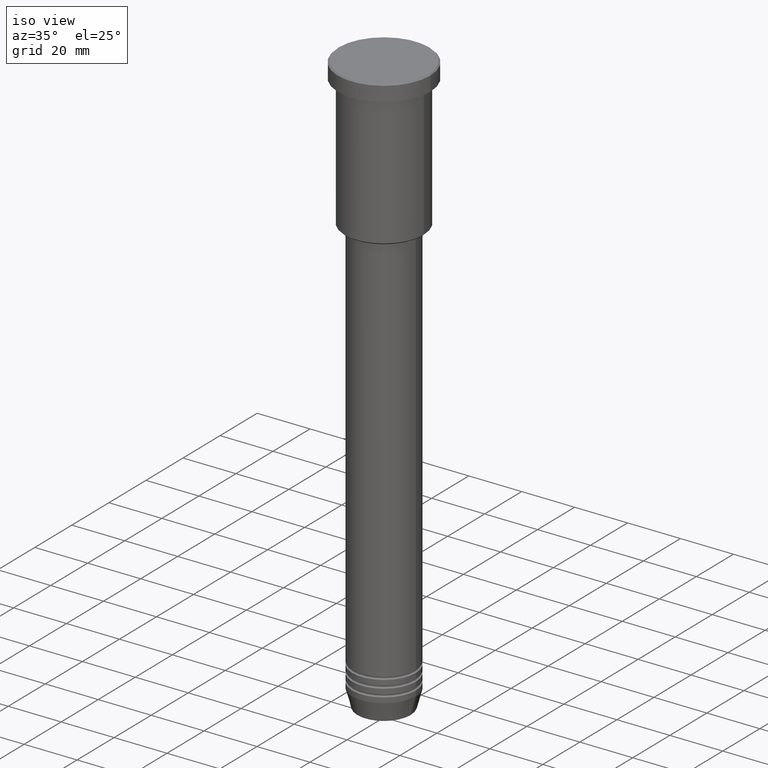
[diagram: clean part render]
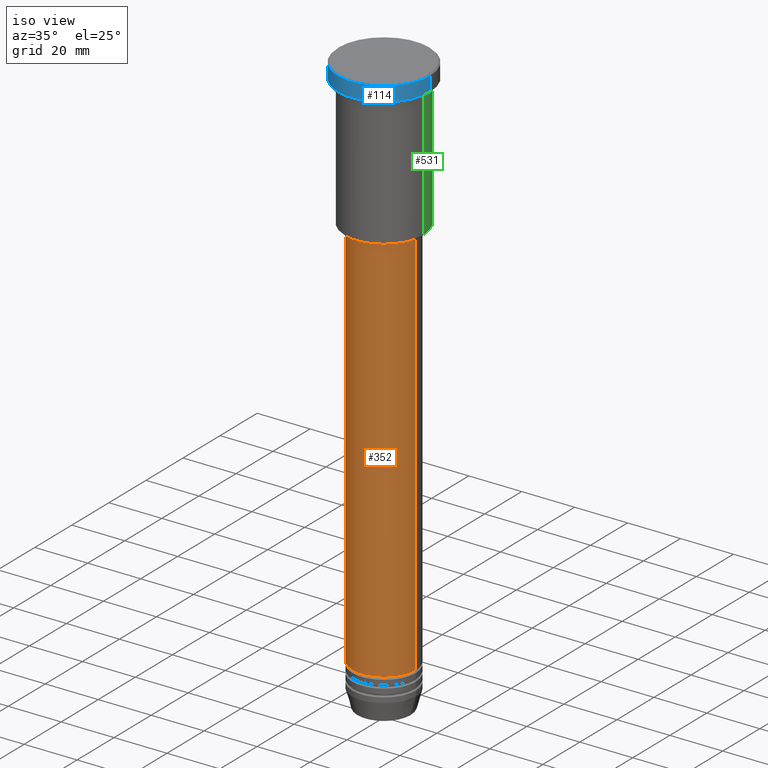
[diagram: same view with three faces highlighted in distinct colors, each labeled with its STEP entity id]
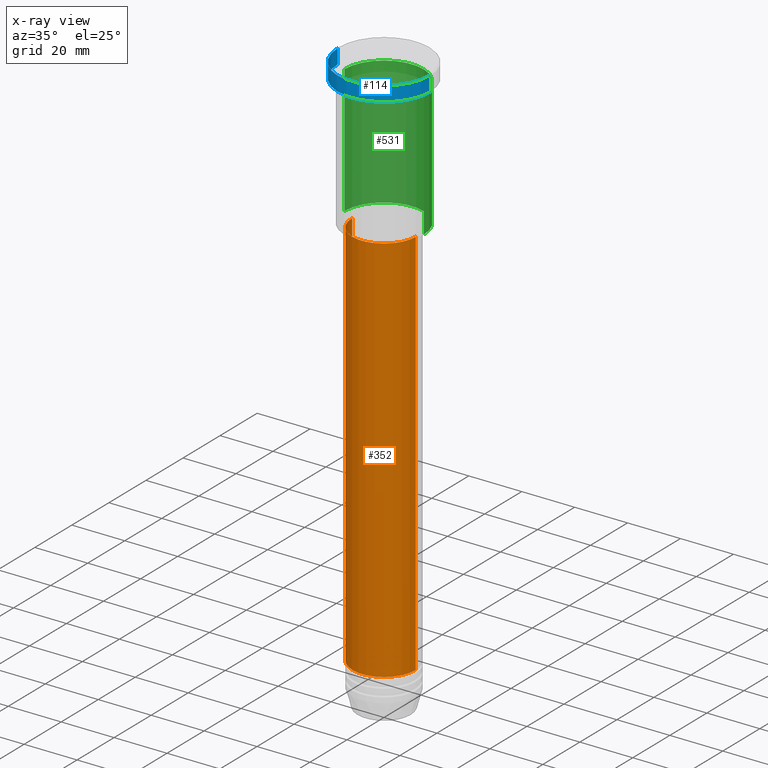
[diagram: x-ray of the same camera — body ghosted, the three highlighted faces saturated]
A machine part, iso view with three faces highlighted in distinct colors.
The next image is the same camera in x-ray (body ghosted, the three faces saturated) — at least one of them is partly hidden behind the body in this view.
Their STEP definitions:

[orange] entity #352 — the highlighted cylindrical surface (partial cylindrical patch) has radius 12 mm, axis along (-0, -0, 1).
#71 = VERTEX_POINT ( 'NONE', #251 ) ;
#85 = DIRECTION ( 'NONE',  ( -0.000000000000000000, -0.000000000000000000, 1.000000000000000000 ) ) ;
#90 = CARTESIAN_POINT ( 'NONE',  ( 0.000000000000000000, 0.000000000000000000, -57.00000000000000000 ) ) ;
#119 = VERTEX_POINT ( 'NONE', #235 ) ;
#205 = EDGE_CURVE ( 'NONE', #302, #664, #422, .T. ) ;
#218 = EDGE_CURVE ( 'NONE', #664, #71, #990, .T. ) ;
#234 = CIRCLE ( 'NONE', #1038, 12.00000000000000000 ) ;
#235 = CARTESIAN_POINT ( 'NONE',  ( -12.00000000000000000, 1.469576158976823947E-15, -57.00000000000000000 ) ) ;
#242 = ORIENTED_EDGE ( 'NONE', *, *, #218, .T. ) ;
#251 = CARTESIAN_POINT ( 'NONE',  ( 12.00000000000000000, 0.000000000000000000, -57.00000000000000000 ) ) ;
#265 = CARTESIAN_POINT ( 'NONE',  ( 0.000000000000000000, 0.000000000000000000, -205.0000000000000000 ) ) ;
#284 = DIRECTION ( 'NONE',  ( 1.000000000000000000, 0.000000000000000000, 0.000000000000000000 ) ) ;
#302 = VERTEX_POINT ( 'NONE', #1145 ) ;
#340 = AXIS2_PLACEMENT_3D ( 'NONE', #265, #1013, #1098 ) ;
#352 = ADVANCED_FACE ( 'NONE', ( #1042 ), #869, .T. ) ;
#406 = AXIS2_PLACEMENT_3D ( 'NONE', #1156, #971, #284 ) ;
#422 = CIRCLE ( 'NONE', #340, 12.00000000000000000 ) ;
#476 = ORIENTED_EDGE ( 'NONE', *, *, #205, .T. ) ;
#484 = EDGE_CURVE ( 'NONE', #119, #71, #234, .T. ) ;
#546 = VECTOR ( 'NONE', #85, 1000.000000000000000 ) ;
#661 = VECTOR ( 'NONE', #824, 1000.000000000000000 ) ;
#664 = VERTEX_POINT ( 'NONE', #752 ) ;
#715 = DIRECTION ( 'NONE',  ( 1.000000000000000000, 0.000000000000000000, 0.000000000000000000 ) ) ;
#752 = CARTESIAN_POINT ( 'NONE',  ( 12.00000000000000000, 0.000000000000000000, -205.0000000000000000 ) ) ;
#824 = DIRECTION ( 'NONE',  ( -0.000000000000000000, -0.000000000000000000, 1.000000000000000000 ) ) ;
#869 = CYLINDRICAL_SURFACE ( 'NONE', #406, 12.00000000000000000 ) ;
#878 = DIRECTION ( 'NONE',  ( -0.000000000000000000, -0.000000000000000000, 1.000000000000000000 ) ) ;
#893 = CARTESIAN_POINT ( 'NONE',  ( 12.00000000000000000, 0.000000000000000000, 0.000000000000000000 ) ) ;
#915 = LINE ( 'NONE', #997, #661 ) ;
#948 = EDGE_LOOP ( 'NONE', ( #1083, #476, #242, #1047 ) ) ;
#971 = DIRECTION ( 'NONE',  ( -0.000000000000000000, -0.000000000000000000, 1.000000000000000000 ) ) ;
#990 = LINE ( 'NONE', #893, #546 ) ;
#997 = CARTESIAN_POINT ( 'NONE',  ( -12.00000000000000000, 1.469576158976823947E-15, 0.000000000000000000 ) ) ;
#1013 = DIRECTION ( 'NONE',  ( -0.000000000000000000, -0.000000000000000000, 1.000000000000000000 ) ) ;
#1038 = AXIS2_PLACEMENT_3D ( 'NONE', #90, #878, #715 ) ;
#1042 = FACE_OUTER_BOUND ( 'NONE', #948, .T. ) ;
#1047 = ORIENTED_EDGE ( 'NONE', *, *, #484, .F. ) ;
#1083 = ORIENTED_EDGE ( 'NONE', *, *, #1105, .F. ) ;
#1098 = DIRECTION ( 'NONE',  ( 1.000000000000000000, 0.000000000000000000, 0.000000000000000000 ) ) ;
#1105 = EDGE_CURVE ( 'NONE', #302, #119, #915, .T. ) ;
#1145 = CARTESIAN_POINT ( 'NONE',  ( -12.00000000000000000, 1.469576158976823947E-15, -205.0000000000000000 ) ) ;
#1156 = CARTESIAN_POINT ( 'NONE',  ( 0.000000000000000000, 0.000000000000000000, 0.000000000000000000 ) ) ;

[blue] entity #114 — the highlighted cylindrical surface (partial cylindrical patch) has radius 17.5 mm, axis along (-0, -0, 1).
#65 = EDGE_CURVE ( 'NONE', #880, #222, #253, .T. ) ;
#77 = CARTESIAN_POINT ( 'NONE',  ( 17.50000000000000000, 0.000000000000000000, -5.999999999999995559 ) ) ;
#95 = CARTESIAN_POINT ( 'NONE',  ( -17.50000000000000000, 2.143131898507868248E-15, 0.000000000000000000 ) ) ;
#114 = ADVANCED_FACE ( 'NONE', ( #1152 ), #695, .T. ) ;
#134 = EDGE_CURVE ( 'NONE', #835, #481, #897, .T. ) ;
#156 = DIRECTION ( 'NONE',  ( 1.000000000000000000, 0.000000000000000000, 0.000000000000000000 ) ) ;
#163 = CARTESIAN_POINT ( 'NONE',  ( 17.50000000000000000, 0.000000000000000000, 0.000000000000000000 ) ) ;
#222 = VERTEX_POINT ( 'NONE', #811 ) ;
#229 = CARTESIAN_POINT ( 'NONE',  ( -17.50000000000000000, 2.143131898507868248E-15, -5.999999999999995559 ) ) ;
#253 = CIRCLE ( 'NONE', #1035, 17.50000000000000000 ) ;
#266 = LINE ( 'NONE', #163, #693 ) ;
#323 = AXIS2_PLACEMENT_3D ( 'NONE', #533, #1164, #700 ) ;
#361 = DIRECTION ( 'NONE',  ( 1.000000000000000000, 0.000000000000000000, 0.000000000000000000 ) ) ;
#374 = CARTESIAN_POINT ( 'NONE',  ( 0.000000000000000000, 0.000000000000000000, -5.999999999999995559 ) ) ;
#380 = LINE ( 'NONE', #95, #846 ) ;
#454 = DIRECTION ( 'NONE',  ( -0.000000000000000000, -0.000000000000000000, 1.000000000000000000 ) ) ;
#481 = VERTEX_POINT ( 'NONE', #77 ) ;
#528 = CARTESIAN_POINT ( 'NONE',  ( 0.000000000000000000, 0.000000000000000000, -0.5000000000000280886 ) ) ;
#530 = CARTESIAN_POINT ( 'NONE',  ( 17.50000000000000000, 0.000000000000000000, -0.5000000000000280886 ) ) ;
#533 = CARTESIAN_POINT ( 'NONE',  ( 0.000000000000000000, 0.000000000000000000, 0.000000000000000000 ) ) ;
#535 = DIRECTION ( 'NONE',  ( -0.000000000000000000, -0.000000000000000000, 1.000000000000000000 ) ) ;
#591 = ORIENTED_EDGE ( 'NONE', *, *, #134, .T. ) ;
#616 = ORIENTED_EDGE ( 'NONE', *, *, #1149, .F. ) ;
#693 = VECTOR ( 'NONE', #535, 1000.000000000000000 ) ;
#695 = CYLINDRICAL_SURFACE ( 'NONE', #323, 17.50000000000000000 ) ;
#700 = DIRECTION ( 'NONE',  ( 1.000000000000000000, 0.000000000000000000, 0.000000000000000000 ) ) ;
#744 = ORIENTED_EDGE ( 'NONE', *, *, #65, .T. ) ;
#746 = AXIS2_PLACEMENT_3D ( 'NONE', #374, #1179, #361 ) ;
#811 = CARTESIAN_POINT ( 'NONE',  ( -17.50000000000000000, 2.143131898507868248E-15, -0.5000000000000280886 ) ) ;
#835 = VERTEX_POINT ( 'NONE', #229 ) ;
#846 = VECTOR ( 'NONE', #454, 1000.000000000000000 ) ;
#880 = VERTEX_POINT ( 'NONE', #530 ) ;
#897 = CIRCLE ( 'NONE', #746, 17.50000000000000000 ) ;
#904 = EDGE_CURVE ( 'NONE', #481, #880, #266, .T. ) ;
#940 = EDGE_LOOP ( 'NONE', ( #616, #591, #1089, #744 ) ) ;
#985 = DIRECTION ( 'NONE',  ( 0.000000000000000000, 0.000000000000000000, -1.000000000000000000 ) ) ;
#1035 = AXIS2_PLACEMENT_3D ( 'NONE', #528, #985, #156 ) ;
#1089 = ORIENTED_EDGE ( 'NONE', *, *, #904, .T. ) ;
#1149 = EDGE_CURVE ( 'NONE', #835, #222, #380, .T. ) ;
#1152 = FACE_OUTER_BOUND ( 'NONE', #940, .T. ) ;
#1164 = DIRECTION ( 'NONE',  ( -0.000000000000000000, -0.000000000000000000, 1.000000000000000000 ) ) ;
#1179 = DIRECTION ( 'NONE',  ( -0.000000000000000000, -0.000000000000000000, 1.000000000000000000 ) ) ;

[green] entity #531 — the highlighted cylindrical surface (partial cylindrical patch) has radius 15 mm, axis along (-0, -0, 1).
#18 = VERTEX_POINT ( 'NONE', #687 ) ;
#22 = CARTESIAN_POINT ( 'NONE',  ( -15.00000000000000000, 1.836970198721029589E-15, -6.999999999999995559 ) ) ;
#43 = DIRECTION ( 'NONE',  ( 1.000000000000000000, 0.000000000000000000, 0.000000000000000000 ) ) ;
#73 = EDGE_CURVE ( 'NONE', #1033, #18, #88, .T. ) ;
#88 = CIRCLE ( 'NONE', #920, 15.00000000000000000 ) ;
#91 = AXIS2_PLACEMENT_3D ( 'NONE', #951, #133, #43 ) ;
#133 = DIRECTION ( 'NONE',  ( -0.000000000000000000, -0.000000000000000000, 1.000000000000000000 ) ) ;
#182 = ORIENTED_EDGE ( 'NONE', *, *, #857, .F. ) ;
#257 = VECTOR ( 'NONE', #696, 1000.000000000000000 ) ;
#332 = CARTESIAN_POINT ( 'NONE',  ( 15.00000000000000000, 0.000000000000000000, 0.000000000000000000 ) ) ;
#342 = AXIS2_PLACEMENT_3D ( 'NONE', #896, #809, #615 ) ;
#364 = VECTOR ( 'NONE', #631, 1000.000000000000000 ) ;
#449 = CYLINDRICAL_SURFACE ( 'NONE', #342, 15.00000000000000000 ) ;
#471 = EDGE_CURVE ( 'NONE', #18, #1107, #994, .T. ) ;
#531 = ADVANCED_FACE ( 'NONE', ( #1066 ), #449, .T. ) ;
#594 = LINE ( 'NONE', #332, #257 ) ;
#615 = DIRECTION ( 'NONE',  ( 1.000000000000000000, 0.000000000000000000, 0.000000000000000000 ) ) ;
#625 = CIRCLE ( 'NONE', #91, 15.00000000000000000 ) ;
#631 = DIRECTION ( 'NONE',  ( -0.000000000000000000, -0.000000000000000000, 1.000000000000000000 ) ) ;
#651 = CARTESIAN_POINT ( 'NONE',  ( 15.00000000000000000, 0.000000000000000000, -55.50000000000000711 ) ) ;
#687 = CARTESIAN_POINT ( 'NONE',  ( -15.00000000000000000, 1.836970198721029589E-15, -55.50000000000000711 ) ) ;
#696 = DIRECTION ( 'NONE',  ( -0.000000000000000000, -0.000000000000000000, 1.000000000000000000 ) ) ;
#702 = CARTESIAN_POINT ( 'NONE',  ( -15.00000000000000000, 1.836970198721029589E-15, 0.000000000000000000 ) ) ;
#778 = CARTESIAN_POINT ( 'NONE',  ( 0.000000000000000000, 0.000000000000000000, -55.50000000000000711 ) ) ;
#796 = ORIENTED_EDGE ( 'NONE', *, *, #471, .T. ) ;
#809 = DIRECTION ( 'NONE',  ( -0.000000000000000000, -0.000000000000000000, 1.000000000000000000 ) ) ;
#841 = EDGE_CURVE ( 'NONE', #1153, #1107, #625, .T. ) ;
#857 = EDGE_CURVE ( 'NONE', #1033, #1153, #594, .T. ) ;
#882 = DIRECTION ( 'NONE',  ( -0.000000000000000000, -0.000000000000000000, 1.000000000000000000 ) ) ;
#896 = CARTESIAN_POINT ( 'NONE',  ( 0.000000000000000000, 0.000000000000000000, 0.000000000000000000 ) ) ;
#920 = AXIS2_PLACEMENT_3D ( 'NONE', #778, #882, #1157 ) ;
#951 = CARTESIAN_POINT ( 'NONE',  ( 0.000000000000000000, 0.000000000000000000, -6.999999999999995559 ) ) ;
#984 = ORIENTED_EDGE ( 'NONE', *, *, #73, .T. ) ;
#994 = LINE ( 'NONE', #702, #364 ) ;
#1033 = VERTEX_POINT ( 'NONE', #651 ) ;
#1039 = ORIENTED_EDGE ( 'NONE', *, *, #841, .F. ) ;
#1066 = FACE_OUTER_BOUND ( 'NONE', #1135, .T. ) ;
#1091 = CARTESIAN_POINT ( 'NONE',  ( 15.00000000000000000, 0.000000000000000000, -6.999999999999995559 ) ) ;
#1107 = VERTEX_POINT ( 'NONE', #22 ) ;
#1135 = EDGE_LOOP ( 'NONE', ( #984, #796, #1039, #182 ) ) ;
#1153 = VERTEX_POINT ( 'NONE', #1091 ) ;
#1157 = DIRECTION ( 'NONE',  ( -1.000000000000000000, 0.000000000000000000, 0.000000000000000000 ) ) ;